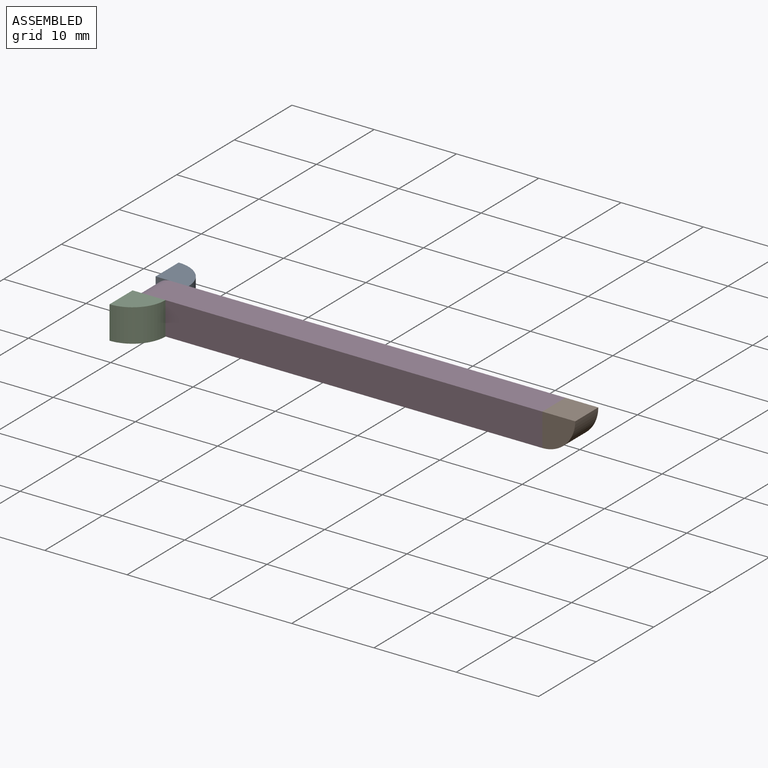
[diagram: assembled view]
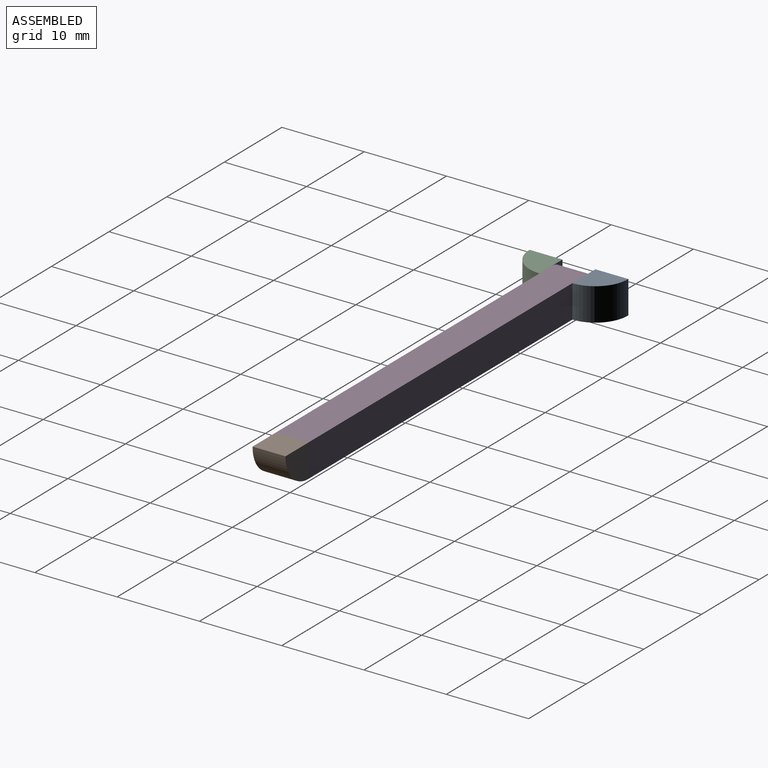
[diagram: assembled view, second angle]
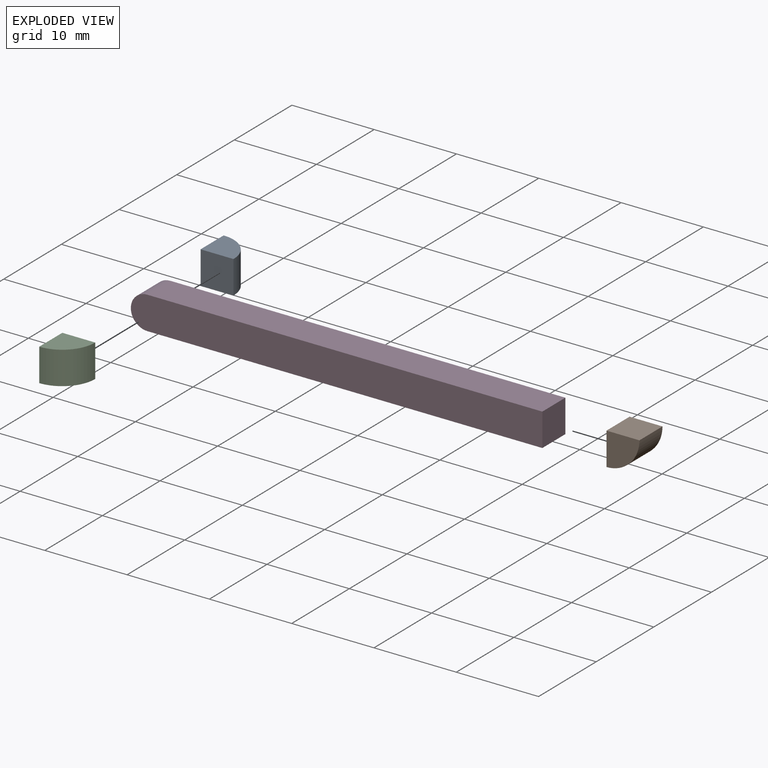
[diagram: exploded view]
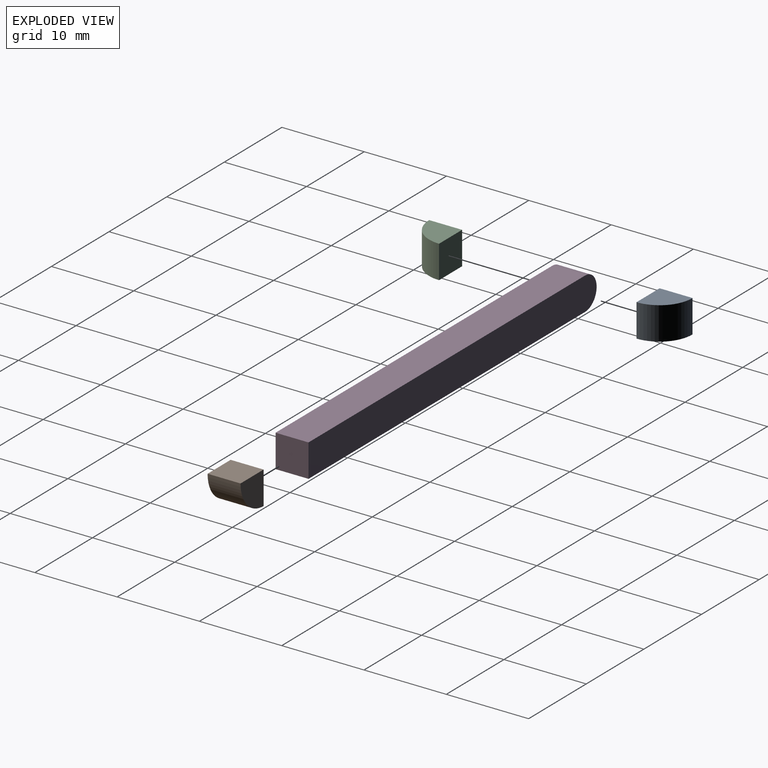
[diagram: exploded view, second angle]
ASSEMBLY  parts=4 mates=3
PART A: 5 faces, bbox 4x4x4 mm
  f0: plane 4x4mm, normal (0,0,-1), area 12.6mm2, adj f1,f3,f4
  f1: cylinder r=4mm len=4mm, axis (0,0,1), area 25.1mm2, adj f0,f2,f3,f4
  f2: plane 4x4mm, normal (0,0,1), area 12.6mm2, adj f1,f3,f4
  f3: plane 4x4mm, normal (0,-1,0), area 16mm2, adj f0,f1,f2,f4
  f4: plane 4x4mm, normal (-1,0,0), area 16mm2, adj f0,f1,f2,f3
PART B: same geometry as A
PART C: same geometry as A
PART D: 6 faces, bbox 50x4x4 mm
  f0: plane 50x4mm, normal (0,-1,0), area 198.3mm2, adj f1,f3,f4,f5
  f1: plane 4x4mm, normal (1,0,0), area 16mm2, adj f0,f2,f3,f4
  f2: plane 50x4mm, normal (0,1,0), area 198.3mm2, adj f1,f3,f4,f5
  f3: plane 48x4mm, normal (0,0,1), area 192mm2, adj f0,f1,f2,f5
  f4: plane 48x4mm, normal (0,0,-1), area 192mm2, adj f0,f1,f2,f5
  f5: cylinder r=2mm len=4mm, axis (0,1,0), area 25.1mm2, adj f0,f2,f3,f4
PLACE A t=(-2.02,2.22,3.48)mm
PLACE B rot(axis=(-1,0,0),90deg) t=(47.76,-1.09,3.73)mm
PLACE C rot(axis=(0,0,-1),90deg) t=(-0.49,-3.31,3.48)mm fixed
PLACE D rot(axis=(0,1,0),0deg) t=(-0.21,-0.99,1.26)mm
MATE revolute C.f4 <-> D.f0  axis (0,1,0) through (-0.02,-3.31,3.26)mm
MATE fastened B.f4 <-> D.f1  axis (-1,0,0) through (47.76,-1.31,3.26)mm
MATE revolute A.f3 <-> D.f2  axis (0,-1,0) through (-0.02,0.69,3.26)mm
